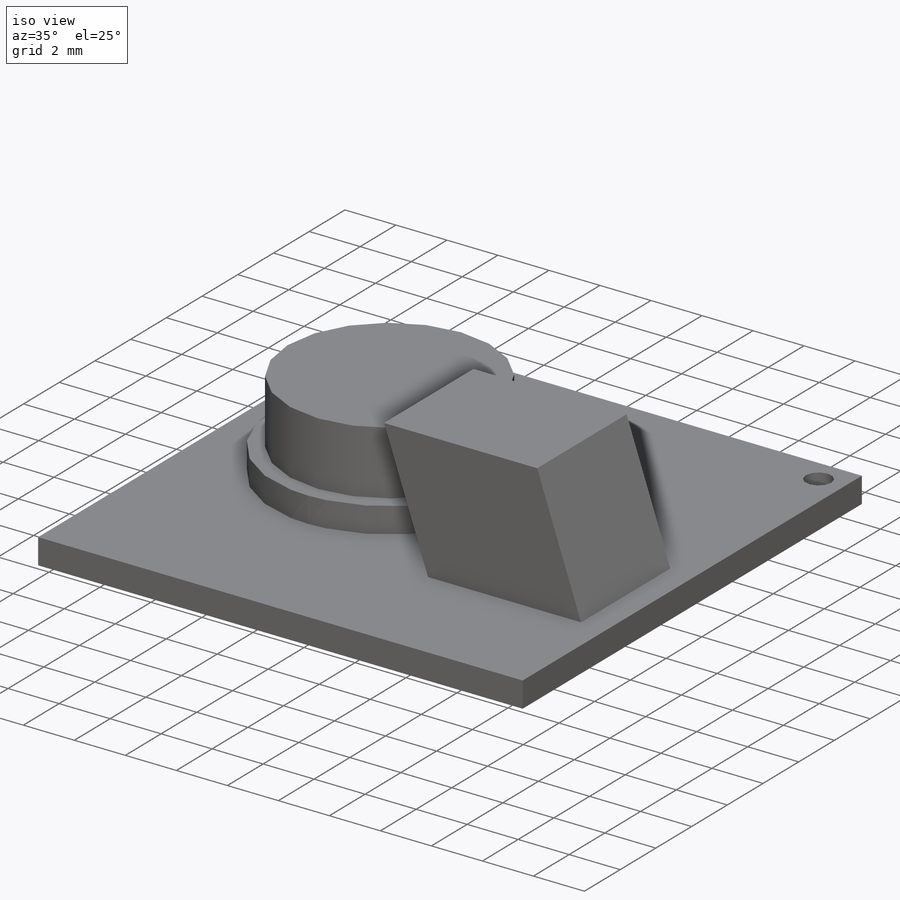
[diagram: iso view]
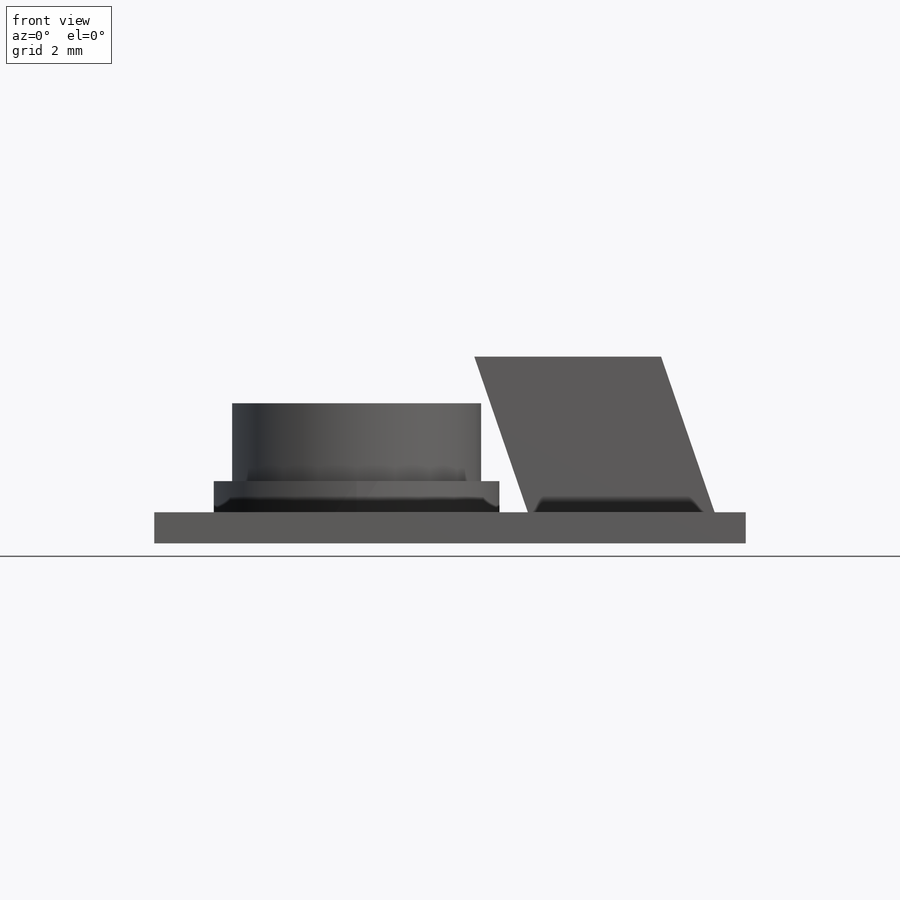
[diagram: front view]
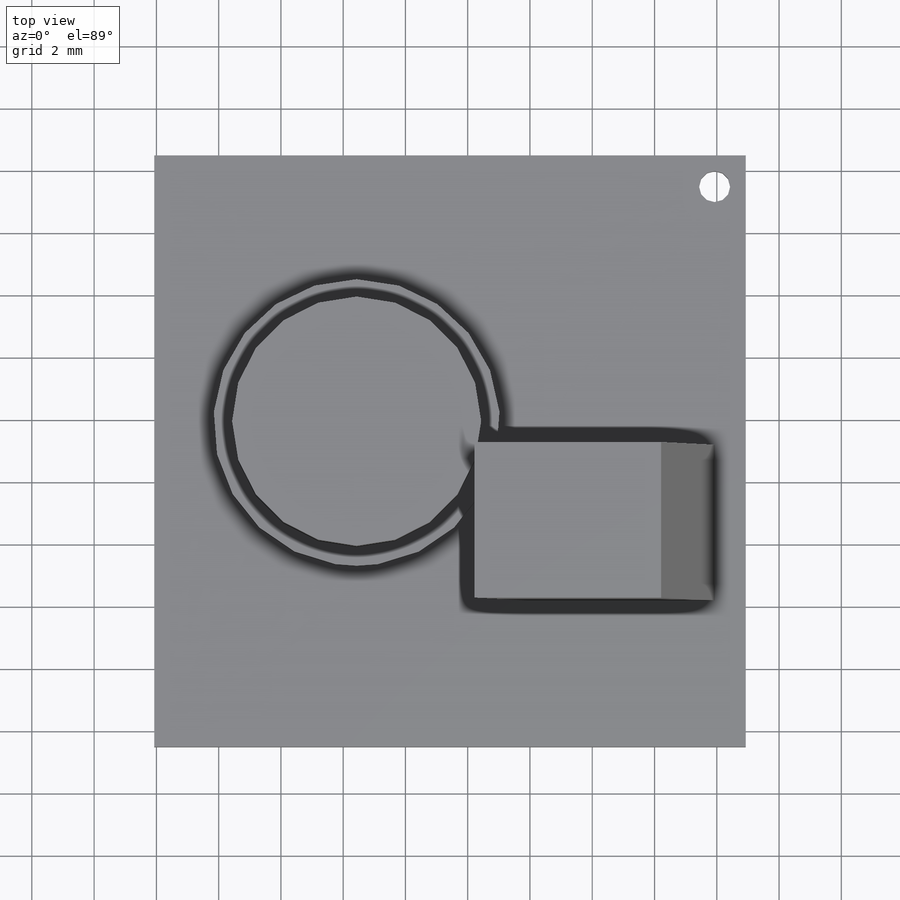
[diagram: top view]
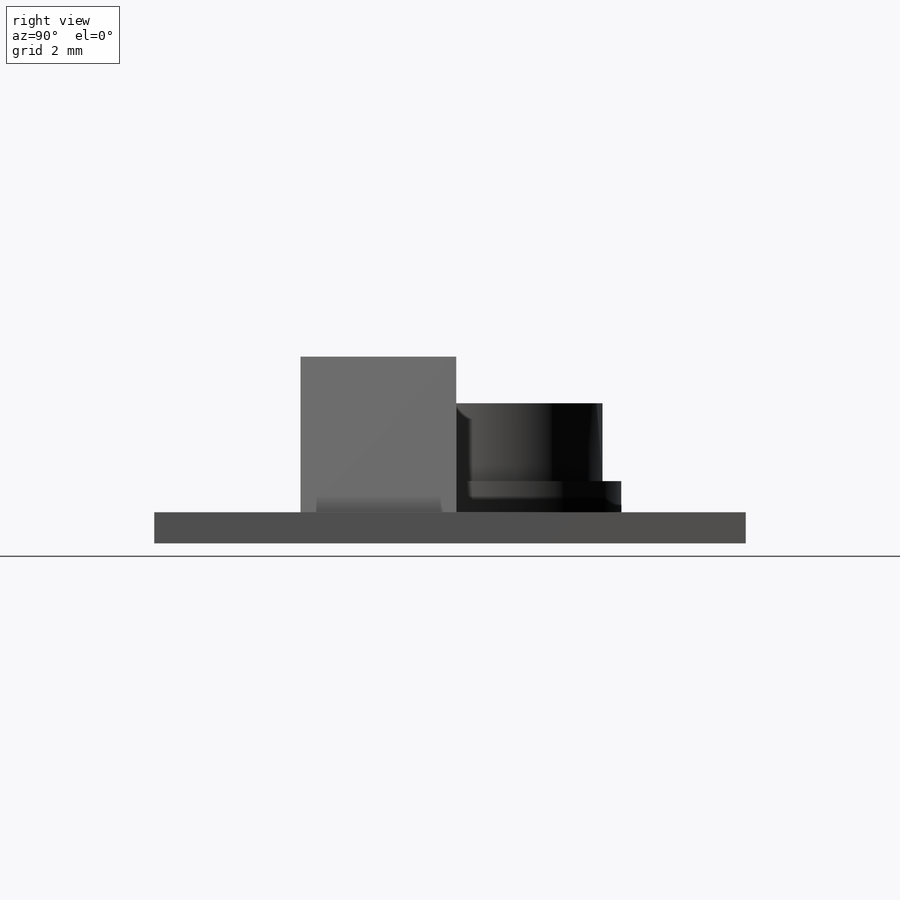
[diagram: right view]
SOLIDWORKS PART (.sldprt)
format: sldprt  version: not decoded by parser v0  size: 234,496 bytes
history: native  units: mm
features: plane x3, extrude x3, material x1, sketch x1, cut_extrude x1, sweep x1 + 5 further entries (+10 scaffold rows collapsed)
feature tree (25):
  scaffold x10  (default folders/planes/origin — collapsed)
  material  "Материал <не указан>"
  plane  "Спереди"
  plane  "Сверху"
  plane  "Справа"
  sketch  "Эскиз1"  dims[c1.D1=~43.573443mm c1.D2=~66.086389mm c2.D1=19.0mm]
  extrude  "Бобышка-Вытянуть1"  Depth=1mm
  "Эскиз2"
  cut_extrude  "Вырез-Вытянуть1"  Depth=1mm
  "Эскиз3"
  extrude  "Бобышка-Вытянуть2"  Depth=1mm
  "Эскиз5"
  extrude  "Бобышка-Вытянуть3"  Depth=2.5mm
  "Эскиз6"
  "Эскиз9"
  sweep  "По траектории1"
decode coverage: 5 of 6 modeling features carry decoded parameters; 5 rows unclassified (native names shown)
note: ~ marks probable driven/reference dimensions
note: suppression state not decoded; provenance and decode notes live in map.json
